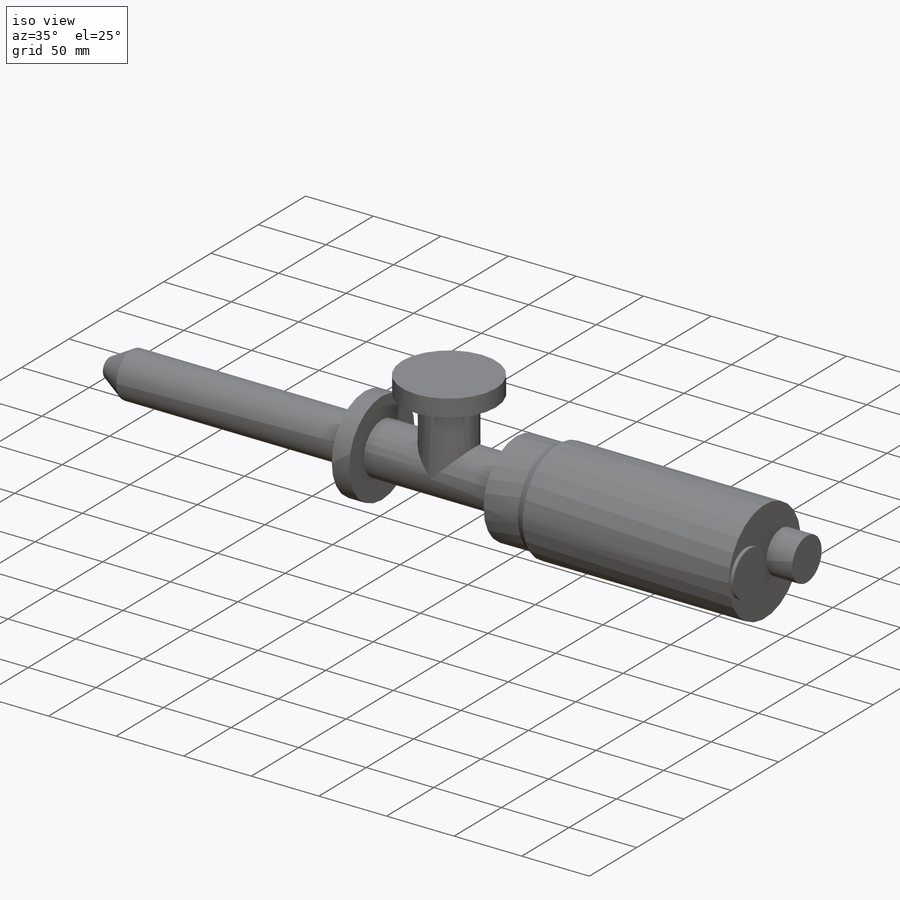
[diagram: iso view]
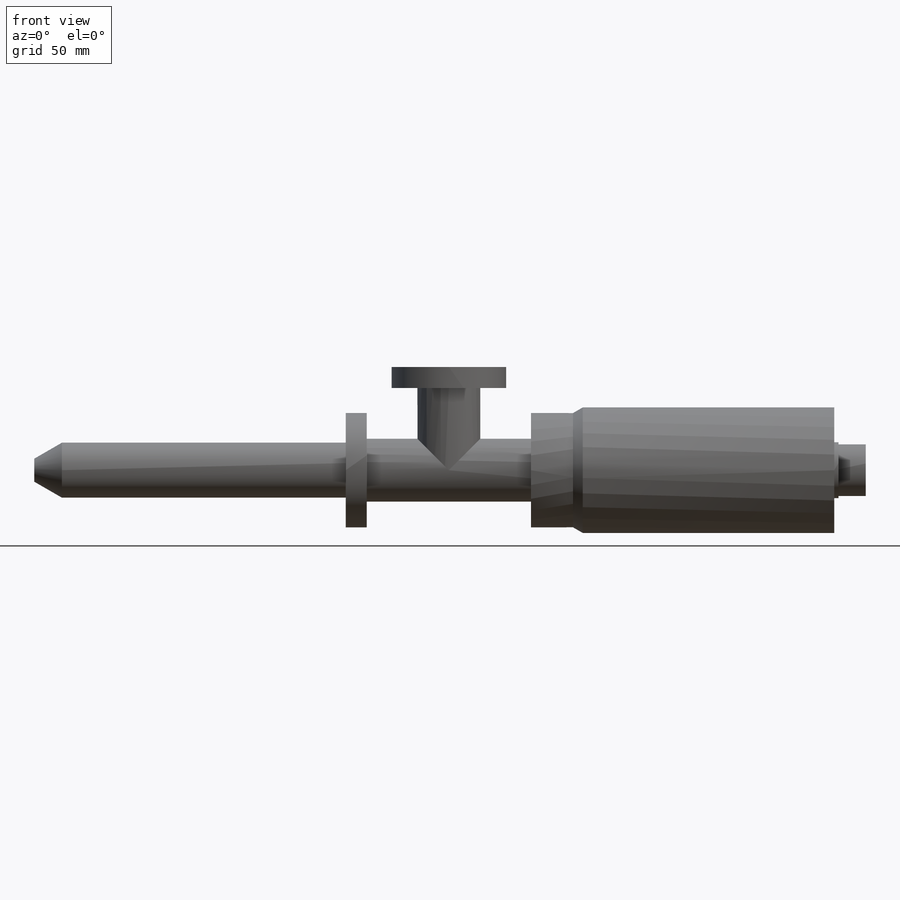
[diagram: front view]
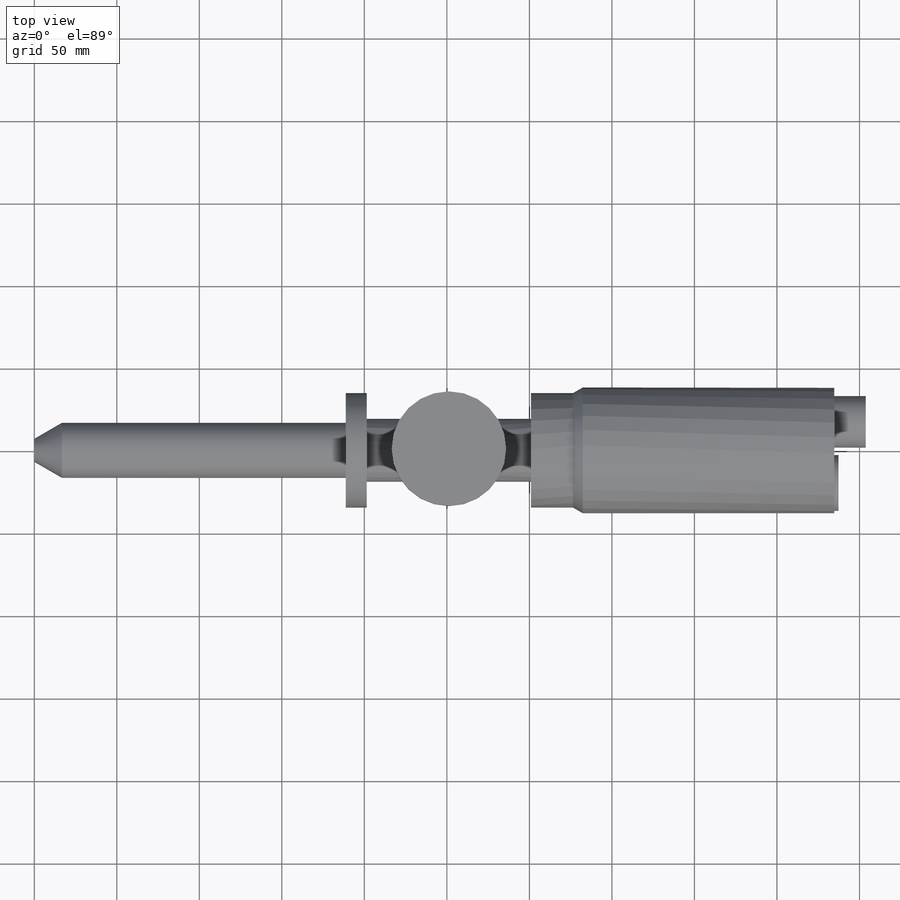
[diagram: top view]
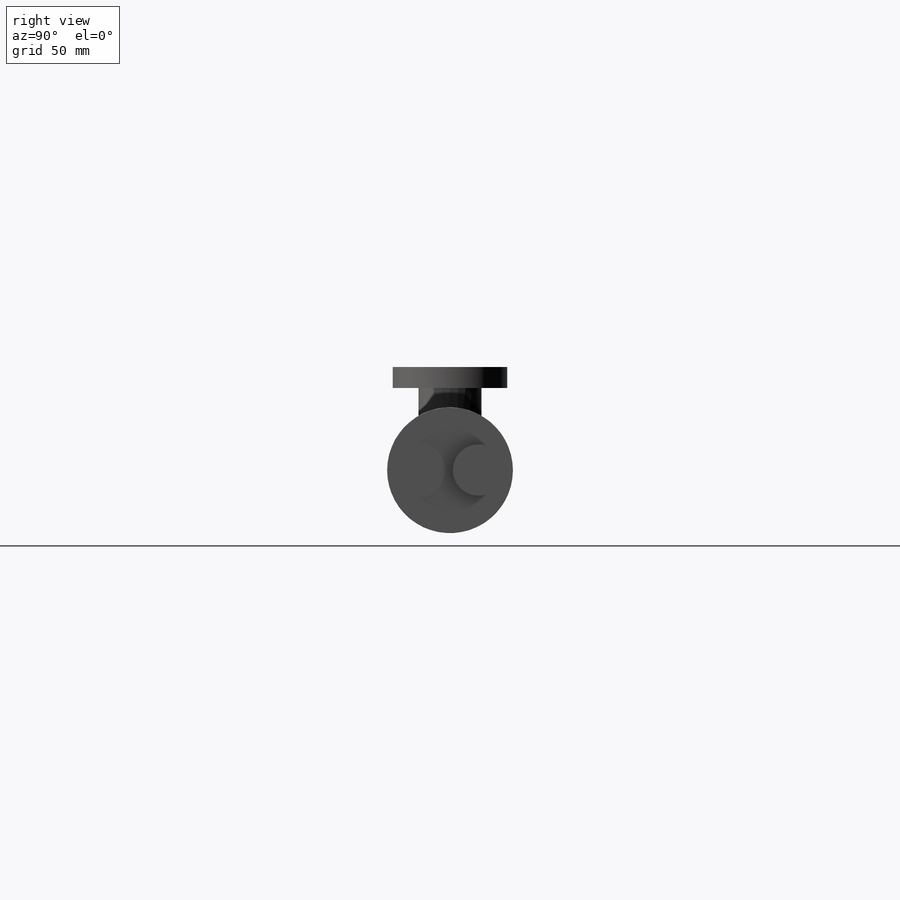
[diagram: right view]
SOLIDWORKS PART (.sldprt)
format: sldprt  version: not decoded by parser v0  size: 184,832 bytes
history: native  units: mm
features: sketch x5, extrude x4, material x1, revolve x1 (+16 scaffold rows collapsed)
feature tree (27):
  scaffold x16  (default folders/planes/origin — collapsed)
  material  "Material <not specified>"
  sketch  "Sketch1"  dims[c1.D1=6.985mm c1.D2=~21.256761mm c2.D2=30.0deg c2.D3=16.6624mm c2.D4=188.722mm c2.D5=12.7mm c2.D6=34.671mm c2.D7=99.568mm c2.D8=25.4mm c2.D9=34.671mm c2.D10=~20.453421mm c3.D10=30.0deg c3.D11=38.1mm c3.D12=152.4mm c3.D13=19.05mm]
  revolve  "Revolve1"  Angle=360deg
  sketch  "Sketch2"  dims[D1=38.1mm D2=62.484mm]
  extrude  "Boss-Extrude1"  Depth=62.484mm
  sketch  "Sketch3"  dims[D1=69.342mm]
  extrude  "Boss-Extrude2"  Depth=12.7mm
  sketch  "Sketch4"  dims[D1=31.242mm D2=0.0mm D3=17.272mm]
  extrude  "Boss-Extrude3"  Depth=19.05mm
  sketch  "Sketch5"  dims[D2=33.782mm D1=0.0mm D3=19.812mm]
  extrude  "Boss-Extrude4"  Depth=2.54mm
decode coverage: 10 of 10 modeling features carry decoded parameters
note: ~ marks probable driven/reference dimensions
note: suppression state not decoded; provenance and decode notes live in map.json
